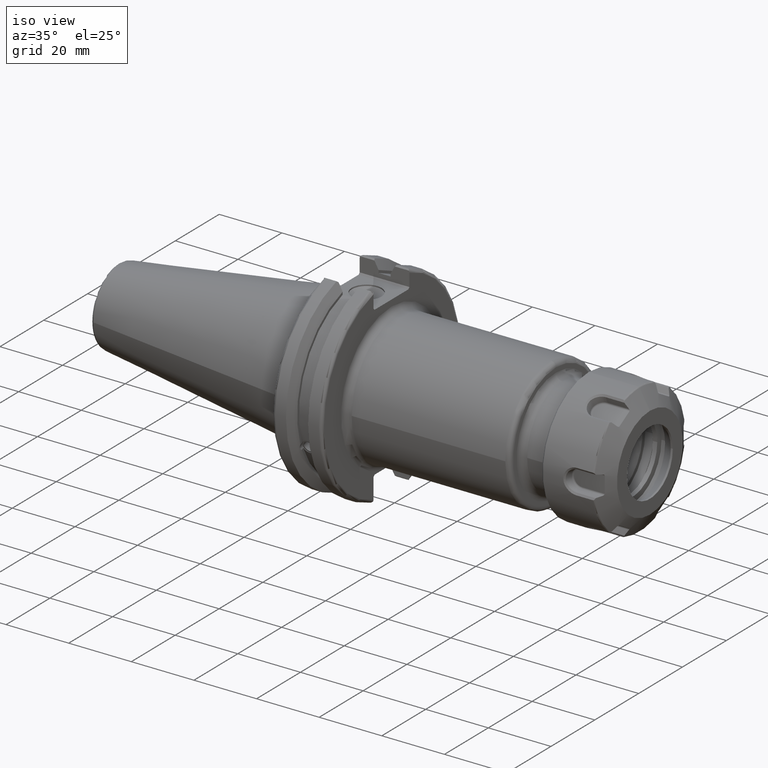
[diagram: clean part render]
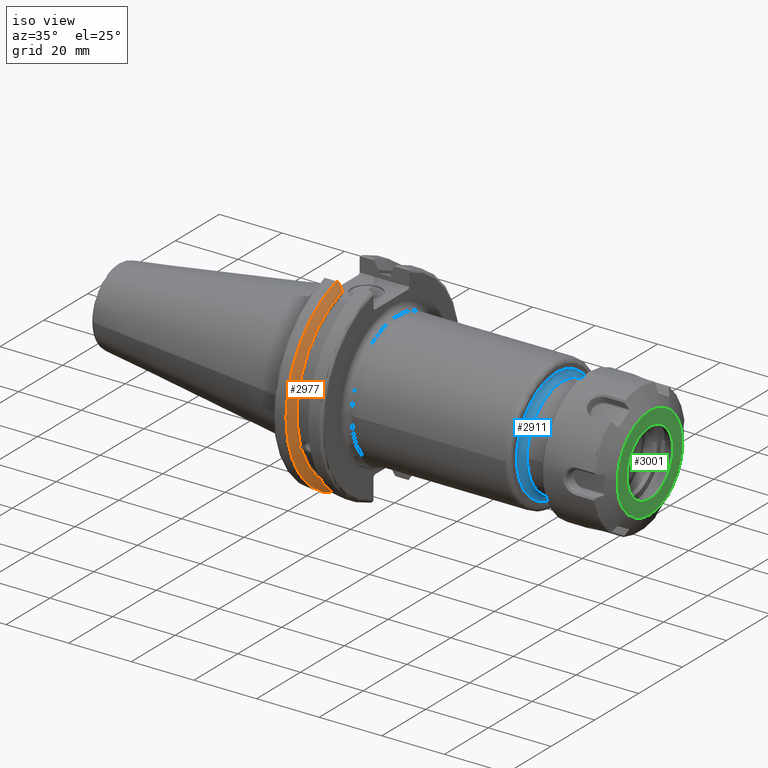
[diagram: same view with three faces highlighted in distinct colors, each labeled with its STEP entity id]
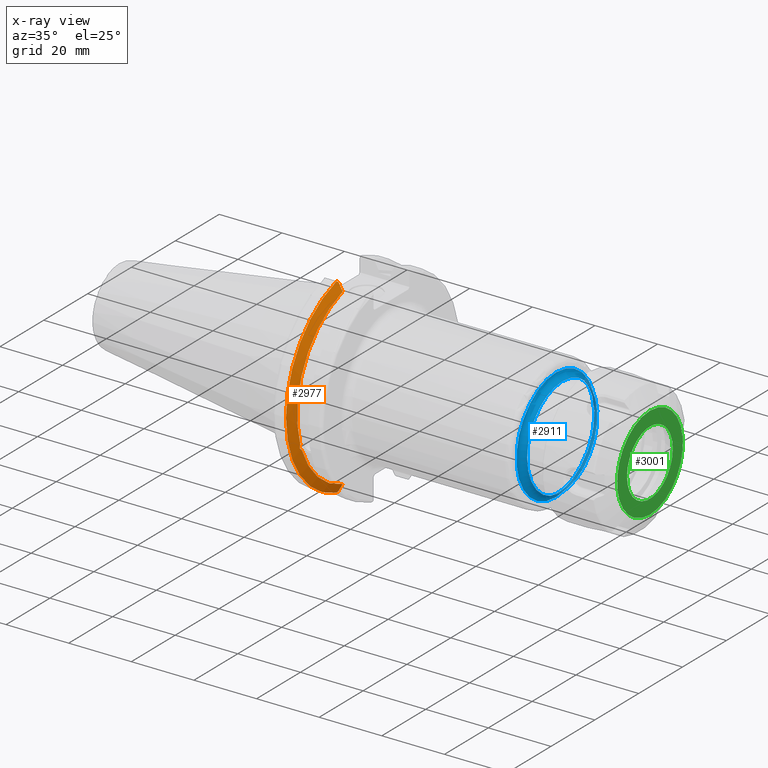
[diagram: x-ray of the same camera — body ghosted, the three highlighted faces saturated]
A machine part, iso view with three faces highlighted in distinct colors.
The next image is the same camera in x-ray (body ghosted, the three faces saturated) — at least one of them is partly hidden behind the body in this view.
Their STEP definitions:

[orange] entity #2977 — the highlighted conical surface has half-angle 60 deg.
#124=(
BOUNDED_CURVE()
B_SPLINE_CURVE(2,(#4924,#4925,#4926),.UNSPECIFIED.,.F.,.F.)
B_SPLINE_CURVE_WITH_KNOTS((3,3),(0.,0.276549142796606),.UNSPECIFIED.)
CURVE()
GEOMETRIC_REPRESENTATION_ITEM()
RATIONAL_B_SPLINE_CURVE((1.,1.00095203903674,1.00031614444931))
REPRESENTATION_ITEM('')
);
#125=(
BOUNDED_CURVE()
B_SPLINE_CURVE(2,(#4936,#4937,#4938),.UNSPECIFIED.,.F.,.F.)
B_SPLINE_CURVE_WITH_KNOTS((3,3),(0.0550586467396013,0.331607789535851),
 .UNSPECIFIED.)
CURVE()
GEOMETRIC_REPRESENTATION_ITEM()
RATIONAL_B_SPLINE_CURVE((1.00031614445107,1.00095203904202,1.))
REPRESENTATION_ITEM('')
);
#126=(
BOUNDED_CURVE()
B_SPLINE_CURVE(2,(#4971,#4972,#4973),.UNSPECIFIED.,.F.,.F.)
B_SPLINE_CURVE_WITH_KNOTS((3,3),(0.,0.0639048713675736),.UNSPECIFIED.)
CURVE()
GEOMETRIC_REPRESENTATION_ITEM()
RATIONAL_B_SPLINE_CURVE((1.,1.00028444218293,1.00047644010591))
REPRESENTATION_ITEM('')
);
#127=(
BOUNDED_CURVE()
B_SPLINE_CURVE(2,(#4979,#4980,#4981),.UNSPECIFIED.,.F.,.F.)
B_SPLINE_CURVE_WITH_KNOTS((3,3),(0.329353533631217,0.393258405001025),
 .UNSPECIFIED.)
CURVE()
GEOMETRIC_REPRESENTATION_ITEM()
RATIONAL_B_SPLINE_CURVE((1.00047644010584,1.0002844421829,1.))
REPRESENTATION_ITEM('')
);
#157=B_SPLINE_CURVE_WITH_KNOTS('',3,(#4514,#4515,#4516,#4517,#4518,#4519,
#4520,#4521,#4522,#4523,#4524,#4525,#4526,#4527),.UNSPECIFIED.,.F.,.F.,
(4,2,2,2,2,2,4),(0.451995700189024,0.464547828547661,0.504528771685165,
0.54450971482267,0.584490657960176,0.624471601097681,0.637023729456317),
 .UNSPECIFIED.);
#474=FACE_OUTER_BOUND('',#657,.T.);
#657=EDGE_LOOP('',(#2422,#2423,#2424,#2425,#2426,#2427,#2428,#2429));
#1169=CIRCLE('',#3219,28.9593772964944);
#1193=CIRCLE('',#3278,31.75);
#1205=CIRCLE('',#3313,28.9593772964944);
#1308=VERTEX_POINT('',#4511);
#1309=VERTEX_POINT('',#4513);
#1326=VERTEX_POINT('',#4606);
#1400=VERTEX_POINT('',#4921);
#1401=VERTEX_POINT('',#4923);
#1404=VERTEX_POINT('',#4935);
#1408=VERTEX_POINT('',#4969);
#1409=VERTEX_POINT('',#4975);
#1610=EDGE_CURVE('',#1309,#1308,#157,.T.);
#1634=EDGE_CURVE('',#1309,#1326,#1169,.T.);
#1732=EDGE_CURVE('',#1401,#1400,#124,.T.);
#1738=EDGE_CURVE('',#1404,#1326,#125,.T.);
#1746=EDGE_CURVE('',#1408,#1400,#126,.T.);
#1748=EDGE_CURVE('',#1408,#1409,#1193,.T.);
#1749=EDGE_CURVE('',#1404,#1409,#127,.T.);
#1782=EDGE_CURVE('',#1401,#1308,#1205,.T.);
#2422=ORIENTED_EDGE('',*,*,#1610,.T.);
#2423=ORIENTED_EDGE('',*,*,#1782,.F.);
#2424=ORIENTED_EDGE('',*,*,#1732,.T.);
#2425=ORIENTED_EDGE('',*,*,#1746,.F.);
#2426=ORIENTED_EDGE('',*,*,#1748,.T.);
#2427=ORIENTED_EDGE('',*,*,#1749,.F.);
#2428=ORIENTED_EDGE('',*,*,#1738,.T.);
#2429=ORIENTED_EDGE('',*,*,#1634,.F.);
#2889=CONICAL_SURFACE('',#3312,30.3546886482472,1.0471975511966);
#2977=ADVANCED_FACE('',(#474),#2889,.T.);
#3219=AXIS2_PLACEMENT_3D('',#4607,#3637,#3638);
#3278=AXIS2_PLACEMENT_3D('',#4977,#3810,#3811);
#3312=AXIS2_PLACEMENT_3D('',#5074,#3893,#3894);
#3313=AXIS2_PLACEMENT_3D('',#5075,#3895,#3896);
#3637=DIRECTION('center_axis',(1.,0.,0.));
#3638=DIRECTION('ref_axis',(0.,0.,-1.));
#3810=DIRECTION('center_axis',(1.,0.,0.));
#3811=DIRECTION('ref_axis',(0.,0.,-1.));
#3893=DIRECTION('center_axis',(-1.,0.,0.));
#3894=DIRECTION('ref_axis',(0.,-1.,-1.22464679914735E-16));
#3895=DIRECTION('center_axis',(1.,0.,0.));
#3896=DIRECTION('ref_axis',(0.,0.,-1.));
#4511=CARTESIAN_POINT('',(9.212,-27.4956274489925,-9.09043478536247));
#4513=CARTESIAN_POINT('',(9.212,-26.9060914640648,-10.7101715919071));
#4514=CARTESIAN_POINT('Ctrl Pts',(9.21199999999999,-26.9060914640648,-10.7101715919071));
#4515=CARTESIAN_POINT('Ctrl Pts',(9.19787959280038,-26.9406927482839,-10.6893765730703));
#4516=CARTESIAN_POINT('Ctrl Pts',(9.18440701821433,-26.9744191989197,-10.6676007180673));
#4517=CARTESIAN_POINT('Ctrl Pts',(9.13101855884095,-27.1113422433189,-10.5723885976054));
#4518=CARTESIAN_POINT('Ctrl Pts',(9.09288029158246,-27.2180531796526,-10.4801333026531));
#4519=CARTESIAN_POINT('Ctrl Pts',(9.04068935539424,-27.3968610665578,-10.2639559818059));
#4520=CARTESIAN_POINT('Ctrl Pts',(9.027,-27.4684373304961,-10.139516340139));
#4521=CARTESIAN_POINT('Ctrl Pts',(9.027,-27.559599249844,-9.88905102521651));
#4522=CARTESIAN_POINT('Ctrl Pts',(9.04068935539424,-27.5847569104122,-9.74771639360672));
#4523=CARTESIAN_POINT('Ctrl Pts',(9.09288029158246,-27.5867382255984,-9.46717946402648));
#4524=CARTESIAN_POINT('Ctrl Pts',(9.13101855884095,-27.5642934663232,-9.32791534028656));
#4525=CARTESIAN_POINT('Ctrl Pts',(9.18440701821433,-27.5206055003512,-9.16696618806878));
#4526=CARTESIAN_POINT('Ctrl Pts',(9.19787959280038,-27.5087667900418,-9.12860597076219));
#4527=CARTESIAN_POINT('Ctrl Pts',(9.21199999999999,-27.4956274489925,-9.09043478536247));
#4606=CARTESIAN_POINT('',(9.212,-8.19,-27.7771386827498));
#4607=CARTESIAN_POINT('Origin',(9.212,0.,0.));
#4921=CARTESIAN_POINT('',(7.87958530351256,-8.19,30.1755016258903));
#4923=CARTESIAN_POINT('',(9.212,-8.19,27.7771386827498));
#4924=CARTESIAN_POINT('Ctrl Pts',(9.212,-8.19,27.7771386827498));
#4925=CARTESIAN_POINT('Ctrl Pts',(8.57336356152746,-8.19,28.9303689539641));
#4926=CARTESIAN_POINT('Ctrl Pts',(7.87958530351256,-8.19,30.1755016258903));
#4935=CARTESIAN_POINT('',(7.87958530351256,-8.19,-30.1755016258903));
#4936=CARTESIAN_POINT('Ctrl Pts',(7.87958530351256,-8.19,-30.1755016258903));
#4937=CARTESIAN_POINT('Ctrl Pts',(8.57336356151926,-8.19,-28.9303689539789));
#4938=CARTESIAN_POINT('Ctrl Pts',(9.212,-8.19,-27.7771386827498));
#4969=CARTESIAN_POINT('',(7.60083323092435,-8.67204822802685,30.5427254764662));
#4971=CARTESIAN_POINT('Ctrl Pts',(7.60083323092435,-8.67204822802686,30.5427254764662));
#4972=CARTESIAN_POINT('Ctrl Pts',(7.74189148121629,-8.42917748262642,30.3577067892629));
#4973=CARTESIAN_POINT('Ctrl Pts',(7.87958530351256,-8.19,30.1755016258903));
#4975=CARTESIAN_POINT('',(7.60083323092435,-8.67204822802685,-30.5427254764662));
#4977=CARTESIAN_POINT('Origin',(7.60083323092435,0.,0.));
#4979=CARTESIAN_POINT('Ctrl Pts',(7.87958530351256,-8.19,-30.1755016258903));
#4980=CARTESIAN_POINT('Ctrl Pts',(7.7418914812116,-8.42917748263464,-30.3577067892692));
#4981=CARTESIAN_POINT('Ctrl Pts',(7.60083323092435,-8.67204822802687,-30.5427254764662));
#5074=CARTESIAN_POINT('Origin',(8.40641661546218,0.,0.));
#5075=CARTESIAN_POINT('Origin',(9.212,0.,0.));

[blue] entity #2911 — the highlighted toroidal blend (fillet) surface has major radius 18 mm and minor (blend) radius 2 mm.
#237=TOROIDAL_SURFACE('',#3177,18.,2.);
#408=FACE_OUTER_BOUND('',#580,.T.);
#580=EDGE_LOOP('',(#2040,#2041,#2042,#2043,#2044));
#1137=CIRCLE('',#3153,16.);
#1138=CIRCLE('',#3154,16.);
#1151=CIRCLE('',#3173,18.);
#1154=CIRCLE('',#3178,2.);
#1272=VERTEX_POINT('',#4311);
#1273=VERTEX_POINT('',#4313);
#1284=VERTEX_POINT('',#4347);
#1559=EDGE_CURVE('',#1273,#1272,#1137,.T.);
#1560=EDGE_CURVE('',#1272,#1273,#1138,.T.);
#1576=EDGE_CURVE('',#1284,#1284,#1151,.T.);
#1580=EDGE_CURVE('',#1284,#1273,#1154,.T.);
#2040=ORIENTED_EDGE('',*,*,#1576,.T.);
#2041=ORIENTED_EDGE('',*,*,#1580,.T.);
#2042=ORIENTED_EDGE('',*,*,#1559,.T.);
#2043=ORIENTED_EDGE('',*,*,#1560,.T.);
#2044=ORIENTED_EDGE('',*,*,#1580,.F.);
#2911=ADVANCED_FACE('',(#408),#237,.F.);
#3153=AXIS2_PLACEMENT_3D('',#4314,#3486,#3487);
#3154=AXIS2_PLACEMENT_3D('',#4315,#3488,#3489);
#3173=AXIS2_PLACEMENT_3D('',#4348,#3529,#3530);
#3177=AXIS2_PLACEMENT_3D('',#4355,#3538,#3539);
#3178=AXIS2_PLACEMENT_3D('',#4356,#3540,#3541);
#3486=DIRECTION('center_axis',(-1.,0.,0.));
#3487=DIRECTION('ref_axis',(0.,-1.,1.83697019872103E-16));
#3488=DIRECTION('center_axis',(-1.,0.,0.));
#3489=DIRECTION('ref_axis',(0.,-1.,1.83697019872103E-16));
#3529=DIRECTION('center_axis',(1.,0.,0.));
#3530=DIRECTION('ref_axis',(0.,-1.,1.83697019872103E-16));
#3538=DIRECTION('center_axis',(1.,0.,0.));
#3539=DIRECTION('ref_axis',(0.,0.,-1.));
#3540=DIRECTION('center_axis',(0.,-1.,-1.22464679914735E-16));
#3541=DIRECTION('ref_axis',(0.,-1.22464679914735E-16,1.));
#4311=CARTESIAN_POINT('',(73.6,-16.,-1.95943487863577E-15));
#4313=CARTESIAN_POINT('',(73.6,-1.95943487863577E-15,16.));
#4314=CARTESIAN_POINT('Origin',(73.6,0.,0.));
#4315=CARTESIAN_POINT('Origin',(73.6,0.,0.));
#4347=CARTESIAN_POINT('',(71.6,-2.20436423846524E-15,18.));
#4348=CARTESIAN_POINT('Origin',(71.6,0.,0.));
#4355=CARTESIAN_POINT('Origin',(73.6,0.,0.));
#4356=CARTESIAN_POINT('Origin',(73.6,-2.20436423846524E-15,18.));

[green] entity #3001 — the highlighted planar face has unit normal (1, 0, 0).
#324=FACE_BOUND('',#689,.T.);
#367=PLANE('',#3360);
#498=FACE_OUTER_BOUND('',#688,.T.);
#688=EDGE_LOOP('',(#2515));
#689=EDGE_LOOP('',(#2516));
#1227=CIRCLE('',#3359,10.45);
#1228=CIRCLE('',#3361,15.);
#1440=VERTEX_POINT('',#5145);
#1441=VERTEX_POINT('',#5149);
#1812=EDGE_CURVE('',#1440,#1440,#1227,.T.);
#1814=EDGE_CURVE('',#1441,#1441,#1228,.T.);
#2515=ORIENTED_EDGE('',*,*,#1814,.T.);
#2516=ORIENTED_EDGE('',*,*,#1812,.T.);
#3001=ADVANCED_FACE('',(#498,#324),#367,.T.);
#3359=AXIS2_PLACEMENT_3D('',#5146,#3995,#3996);
#3360=AXIS2_PLACEMENT_3D('',#5148,#3998,#3999);
#3361=AXIS2_PLACEMENT_3D('',#5150,#4000,#4001);
#3995=DIRECTION('center_axis',(-1.,0.,0.));
#3996=DIRECTION('ref_axis',(0.,-1.,0.));
#3998=DIRECTION('center_axis',(1.,0.,0.));
#3999=DIRECTION('ref_axis',(0.,0.,-1.));
#4000=DIRECTION('center_axis',(1.,0.,0.));
#4001=DIRECTION('ref_axis',(0.,0.,1.));
#5145=CARTESIAN_POINT('',(10.,10.45,-1.27975590510898E-15));
#5146=CARTESIAN_POINT('Origin',(10.,0.,0.));
#5148=CARTESIAN_POINT('Origin',(10.,0.,0.));
#5149=CARTESIAN_POINT('',(10.,0.,15.));
#5150=CARTESIAN_POINT('Origin',(10.,0.,0.));